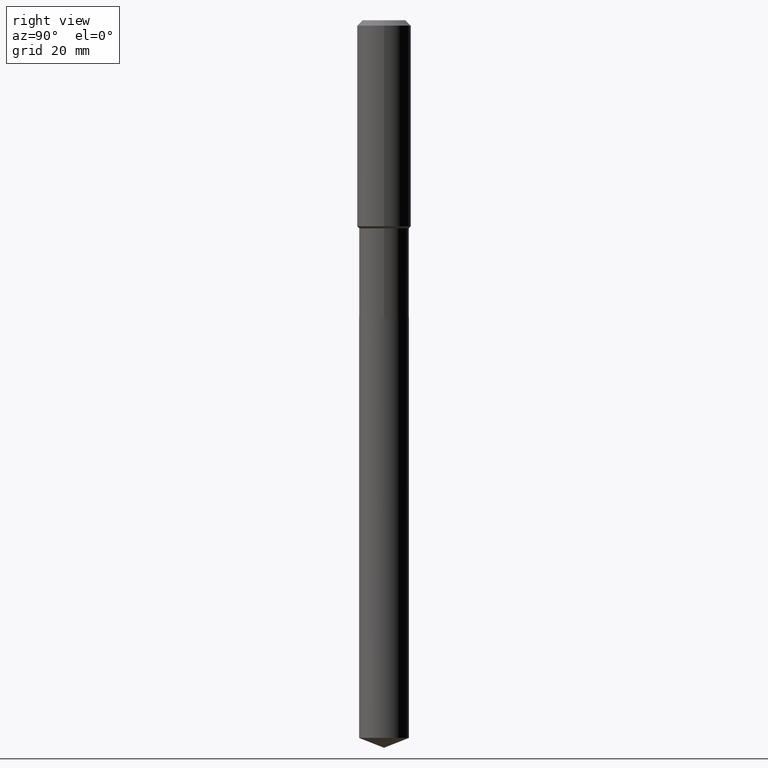
[diagram: clean part render]
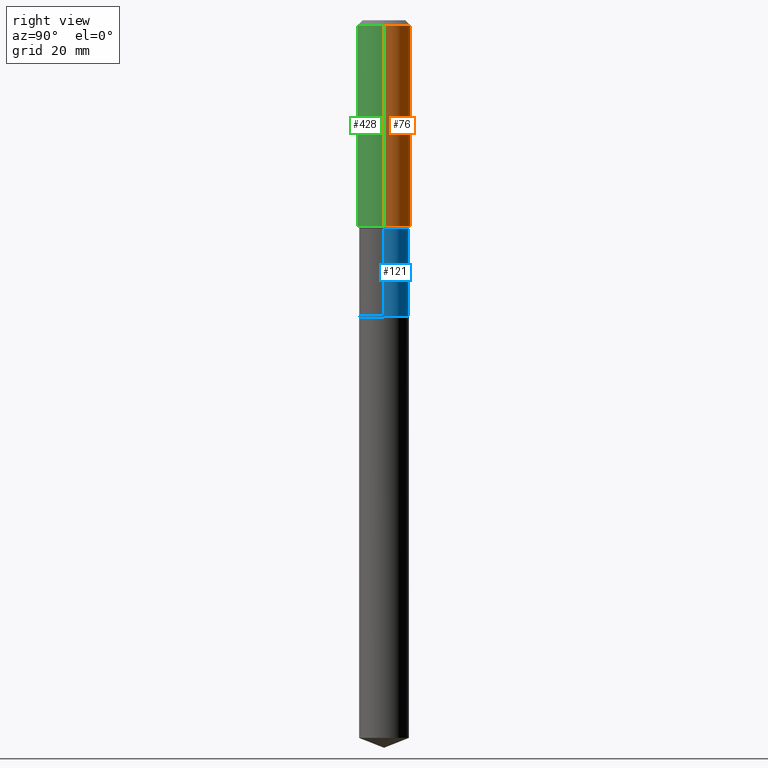
[diagram: same view with three faces highlighted in distinct colors, each labeled with its STEP entity id]
A machine part, right view with three faces highlighted in distinct colors.
Their STEP definitions:

[orange] entity #76 — the highlighted cylindrical surface (edge-blend (fillet) strip) has radius 5.9995 mm, axis along (-0, 0, 1).
#14 = CARTESIAN_POINT ( 'NONE',  ( 0.000000000000000000, 0.000000000000000000, 0.000000000000000000 ) ) ;
#16 = FACE_OUTER_BOUND ( 'NONE', #456, .T. ) ;
#32 = VERTEX_POINT ( 'NONE', #246 ) ;
#34 = CIRCLE ( 'NONE', #161, 0.2361999999999999933 ) ;
#45 = VERTEX_POINT ( 'NONE', #313 ) ;
#67 = CARTESIAN_POINT ( 'NONE',  ( -0.2362000000000001043, 1.678301941865357380E-15, -1.161852468318209317E-29 ) ) ;
#72 = VERTEX_POINT ( 'NONE', #224 ) ;
#74 = DIRECTION ( 'NONE',  ( -2.445468806185136877E-29, 3.491481338843145188E-15, 1.000000000000000000 ) ) ;
#76 = ADVANCED_FACE ( 'NONE', ( #16 ), #368, .T. ) ;
#98 = AXIS2_PLACEMENT_3D ( 'NONE', #14, #329, #168 ) ;
#117 = DIRECTION ( 'NONE',  ( 1.000000000000000000, -6.982962677686266711E-15, 0.000000000000000000 ) ) ;
#120 = DIRECTION ( 'NONE',  ( -2.445468806185136597E-29, 3.491481338843145583E-15, 1.000000000000000000 ) ) ;
#143 = VECTOR ( 'NONE', #485, 39.37007874015748143 ) ;
#152 = CARTESIAN_POINT ( 'NONE',  ( -0.2362000000000002153, -4.628709948620903346E-15, -1.806400000000000672 ) ) ;
#161 = AXIS2_PLACEMENT_3D ( 'NONE', #487, #303, #268 ) ;
#168 = DIRECTION ( 'NONE',  ( 1.000000000000000000, -6.982962677686266711E-15, 4.876176775795935793E-29 ) ) ;
#208 = VECTOR ( 'NONE', #74, 39.37007874015748143 ) ;
#210 = AXIS2_PLACEMENT_3D ( 'NONE', #243, #120, #117 ) ;
#224 = CARTESIAN_POINT ( 'NONE',  ( -0.2361999999999999933, -1.557672792601248144E-15, -0.04724000000000027483 ) ) ;
#243 = CARTESIAN_POINT ( 'NONE',  ( 4.417494851492832724E-29, -6.307011890486260529E-15, -1.806400000000000672 ) ) ;
#246 = CARTESIAN_POINT ( 'NONE',  ( 0.2361999999999999933, -1.814313362916447440E-15, -0.04724000000000027483 ) ) ;
#262 = EDGE_CURVE ( 'NONE', #337, #72, #452, .T. ) ;
#267 = CIRCLE ( 'NONE', #210, 0.2362000000000002153 ) ;
#268 = DIRECTION ( 'NONE',  ( 1.000000000000000000, -6.982962677686266711E-15, 0.000000000000000000 ) ) ;
#296 = EDGE_CURVE ( 'NONE', #32, #72, #34, .T. ) ;
#301 = ORIENTED_EDGE ( 'NONE', *, *, #296, .F. ) ;
#303 = DIRECTION ( 'NONE',  ( -2.445468806185136597E-29, 3.491481338843145583E-15, 1.000000000000000000 ) ) ;
#304 = EDGE_CURVE ( 'NONE', #45, #32, #446, .T. ) ;
#313 = CARTESIAN_POINT ( 'NONE',  ( 0.2362000000000002153, -7.956387674955758632E-15, -1.806400000000000672 ) ) ;
#329 = DIRECTION ( 'NONE',  ( -2.445468806185136597E-29, 3.491481338843145583E-15, 1.000000000000000000 ) ) ;
#337 = VERTEX_POINT ( 'NONE', #152 ) ;
#340 = CARTESIAN_POINT ( 'NONE',  ( 0.2362000000000001043, -1.649375784469496920E-15, 1.151752954443000508E-29 ) ) ;
#352 = ORIENTED_EDGE ( 'NONE', *, *, #262, .T. ) ;
#368 = CYLINDRICAL_SURFACE ( 'NONE', #98, 0.2362000000000001043 ) ;
#414 = ORIENTED_EDGE ( 'NONE', *, *, #416, .T. ) ;
#416 = EDGE_CURVE ( 'NONE', #45, #337, #267, .T. ) ;
#446 = LINE ( 'NONE', #340, #208 ) ;
#447 = ORIENTED_EDGE ( 'NONE', *, *, #304, .F. ) ;
#452 = LINE ( 'NONE', #67, #143 ) ;
#456 = EDGE_LOOP ( 'NONE', ( #414, #352, #301, #447 ) ) ;
#485 = DIRECTION ( 'NONE',  ( -2.445468806185136877E-29, 3.491481338843145188E-15, 1.000000000000000000 ) ) ;
#487 = CARTESIAN_POINT ( 'NONE',  ( 1.155239464041865331E-30, -1.649375784469511612E-16, -0.04724000000000027483 ) ) ;

[blue] entity #121 — the highlighted cylindrical surface (edge-blend (fillet) strip) has radius 5.5499 mm, axis along (-0, 0, 1).
#43 = CIRCLE ( 'NONE', #443, 0.2184999999999999165 ) ;
#79 = ORIENTED_EDGE ( 'NONE', *, *, #214, .F. ) ;
#82 = CARTESIAN_POINT ( 'NONE',  ( -0.2184999999999999443, 1.552535877635818510E-15, -1.074787317220696738E-29 ) ) ;
#86 = CARTESIAN_POINT ( 'NONE',  ( 6.353083411588368076E-29, -9.070519370180611907E-15, -2.597900000000000542 ) ) ;
#121 = ADVANCED_FACE ( 'NONE', ( #400 ), #218, .T. ) ;
#139 = DIRECTION ( 'NONE',  ( -2.445468806185136597E-29, 3.491481338843145583E-15, 1.000000000000000000 ) ) ;
#154 = VECTOR ( 'NONE', #189, 39.37007874015748143 ) ;
#155 = VERTEX_POINT ( 'NONE', #405 ) ;
#156 = CARTESIAN_POINT ( 'NONE',  ( 0.2184999999999999165, -7.894588455258233461E-15, -1.824100000000000943 ) ) ;
#189 = DIRECTION ( 'NONE',  ( -2.445468806185136877E-29, 3.491481338843145188E-15, 1.000000000000000000 ) ) ;
#214 = EDGE_CURVE ( 'NONE', #463, #359, #344, .T. ) ;
#218 = CYLINDRICAL_SURFACE ( 'NONE', #457, 0.2184999999999999443 ) ;
#278 = DIRECTION ( 'NONE',  ( -2.445468806185136877E-29, 3.491481338843145188E-15, 1.000000000000000000 ) ) ;
#284 = ORIENTED_EDGE ( 'NONE', *, *, #413, .T. ) ;
#307 = ORIENTED_EDGE ( 'NONE', *, *, #420, .F. ) ;
#308 = DIRECTION ( 'NONE',  ( 1.000000000000000000, -6.982962677686269077E-15, 0.000000000000000000 ) ) ;
#312 = DIRECTION ( 'NONE',  ( 1.000000000000000000, -6.982962677686266711E-15, 0.000000000000000000 ) ) ;
#326 = CIRCLE ( 'NONE', #479, 0.2184999999999999998 ) ;
#343 = VERTEX_POINT ( 'NONE', #412 ) ;
#344 = LINE ( 'NONE', #481, #154 ) ;
#358 = LINE ( 'NONE', #82, #419 ) ;
#359 = VERTEX_POINT ( 'NONE', #156 ) ;
#367 = DIRECTION ( 'NONE',  ( 1.000000000000000000, -6.982962677686266711E-15, 4.876176775795935793E-29 ) ) ;
#390 = DIRECTION ( 'NONE',  ( -2.445468806185136597E-29, 3.491481338843145583E-15, 1.000000000000000000 ) ) ;
#400 = FACE_OUTER_BOUND ( 'NONE', #424, .T. ) ;
#405 = CARTESIAN_POINT ( 'NONE',  ( -0.2184999999999999720, -6.167129362546378913E-15, -2.597900000000000542 ) ) ;
#412 = CARTESIAN_POINT ( 'NONE',  ( -0.2184999999999999165, -6.167129362546379702E-15, -1.824100000000000943 ) ) ;
#413 = EDGE_CURVE ( 'NONE', #155, #343, #358, .T. ) ;
#419 = VECTOR ( 'NONE', #278, 39.37007874015748143 ) ;
#420 = EDGE_CURVE ( 'NONE', #359, #343, #43, .T. ) ;
#424 = EDGE_LOOP ( 'NONE', ( #426, #284, #307, #79 ) ) ;
#425 = CARTESIAN_POINT ( 'NONE',  ( 0.2184999999999999998, -1.059629671525506125E-14, -2.597900000000000542 ) ) ;
#426 = ORIENTED_EDGE ( 'NONE', *, *, #469, .T. ) ;
#427 = DIRECTION ( 'NONE',  ( -2.445468806185136597E-29, 3.491481338843145583E-15, 1.000000000000000000 ) ) ;
#443 = AXIS2_PLACEMENT_3D ( 'NONE', #455, #427, #312 ) ;
#455 = CARTESIAN_POINT ( 'NONE',  ( 4.460779649362309937E-29, -6.368811110183784911E-15, -1.824100000000000943 ) ) ;
#457 = AXIS2_PLACEMENT_3D ( 'NONE', #480, #139, #367 ) ;
#463 = VERTEX_POINT ( 'NONE', #425 ) ;
#469 = EDGE_CURVE ( 'NONE', #463, #155, #326, .T. ) ;
#479 = AXIS2_PLACEMENT_3D ( 'NONE', #86, #390, #308 ) ;
#480 = CARTESIAN_POINT ( 'NONE',  ( 0.000000000000000000, 0.000000000000000000, 0.000000000000000000 ) ) ;
#481 = CARTESIAN_POINT ( 'NONE',  ( 0.2184999999999999443, -1.525777345074448945E-15, 1.065444625511411679E-29 ) ) ;

[green] entity #428 — the highlighted cylindrical surface (edge-blend (fillet) strip) has radius 5.9995 mm, axis along (-0, 0, 1).
#6 = ORIENTED_EDGE ( 'NONE', *, *, #304, .T. ) ;
#11 = DIRECTION ( 'NONE',  ( 1.000000000000000000, -6.982962677686266711E-15, 4.876176775795935793E-29 ) ) ;
#32 = VERTEX_POINT ( 'NONE', #246 ) ;
#41 = CIRCLE ( 'NONE', #355, 0.2362000000000002153 ) ;
#45 = VERTEX_POINT ( 'NONE', #313 ) ;
#67 = CARTESIAN_POINT ( 'NONE',  ( -0.2362000000000001043, 1.678301941865357380E-15, -1.161852468318209317E-29 ) ) ;
#72 = VERTEX_POINT ( 'NONE', #224 ) ;
#74 = DIRECTION ( 'NONE',  ( -2.445468806185136877E-29, 3.491481338843145188E-15, 1.000000000000000000 ) ) ;
#125 = AXIS2_PLACEMENT_3D ( 'NONE', #288, #292, #144 ) ;
#143 = VECTOR ( 'NONE', #485, 39.37007874015748143 ) ;
#144 = DIRECTION ( 'NONE',  ( 1.000000000000000000, -6.982962677686266711E-15, 0.000000000000000000 ) ) ;
#152 = CARTESIAN_POINT ( 'NONE',  ( -0.2362000000000002153, -4.628709948620903346E-15, -1.806400000000000672 ) ) ;
#164 = EDGE_CURVE ( 'NONE', #337, #45, #41, .T. ) ;
#169 = DIRECTION ( 'NONE',  ( 1.000000000000000000, -6.982962677686266711E-15, 0.000000000000000000 ) ) ;
#182 = EDGE_CURVE ( 'NONE', #72, #32, #325, .T. ) ;
#208 = VECTOR ( 'NONE', #74, 39.37007874015748143 ) ;
#222 = CARTESIAN_POINT ( 'NONE',  ( 4.417494851492832724E-29, -6.307011890486260529E-15, -1.806400000000000672 ) ) ;
#224 = CARTESIAN_POINT ( 'NONE',  ( -0.2361999999999999933, -1.557672792601248144E-15, -0.04724000000000027483 ) ) ;
#237 = ORIENTED_EDGE ( 'NONE', *, *, #262, .F. ) ;
#238 = DIRECTION ( 'NONE',  ( -2.445468806185136597E-29, 3.491481338843145583E-15, 1.000000000000000000 ) ) ;
#241 = EDGE_LOOP ( 'NONE', ( #237, #418, #6, #377 ) ) ;
#245 = CYLINDRICAL_SURFACE ( 'NONE', #316, 0.2362000000000001043 ) ;
#246 = CARTESIAN_POINT ( 'NONE',  ( 0.2361999999999999933, -1.814313362916447440E-15, -0.04724000000000027483 ) ) ;
#252 = DIRECTION ( 'NONE',  ( -2.445468806185136597E-29, 3.491481338843145583E-15, 1.000000000000000000 ) ) ;
#262 = EDGE_CURVE ( 'NONE', #337, #72, #452, .T. ) ;
#282 = CARTESIAN_POINT ( 'NONE',  ( 0.000000000000000000, 0.000000000000000000, 0.000000000000000000 ) ) ;
#288 = CARTESIAN_POINT ( 'NONE',  ( 1.155239464041865331E-30, -1.649375784469511612E-16, -0.04724000000000027483 ) ) ;
#292 = DIRECTION ( 'NONE',  ( -2.445468806185136597E-29, 3.491481338843145583E-15, 1.000000000000000000 ) ) ;
#304 = EDGE_CURVE ( 'NONE', #45, #32, #446, .T. ) ;
#313 = CARTESIAN_POINT ( 'NONE',  ( 0.2362000000000002153, -7.956387674955758632E-15, -1.806400000000000672 ) ) ;
#316 = AXIS2_PLACEMENT_3D ( 'NONE', #282, #238, #11 ) ;
#325 = CIRCLE ( 'NONE', #125, 0.2361999999999999933 ) ;
#337 = VERTEX_POINT ( 'NONE', #152 ) ;
#340 = CARTESIAN_POINT ( 'NONE',  ( 0.2362000000000001043, -1.649375784469496920E-15, 1.151752954443000508E-29 ) ) ;
#351 = FACE_OUTER_BOUND ( 'NONE', #241, .T. ) ;
#355 = AXIS2_PLACEMENT_3D ( 'NONE', #222, #252, #169 ) ;
#377 = ORIENTED_EDGE ( 'NONE', *, *, #182, .F. ) ;
#418 = ORIENTED_EDGE ( 'NONE', *, *, #164, .T. ) ;
#428 = ADVANCED_FACE ( 'NONE', ( #351 ), #245, .T. ) ;
#446 = LINE ( 'NONE', #340, #208 ) ;
#452 = LINE ( 'NONE', #67, #143 ) ;
#485 = DIRECTION ( 'NONE',  ( -2.445468806185136877E-29, 3.491481338843145188E-15, 1.000000000000000000 ) ) ;